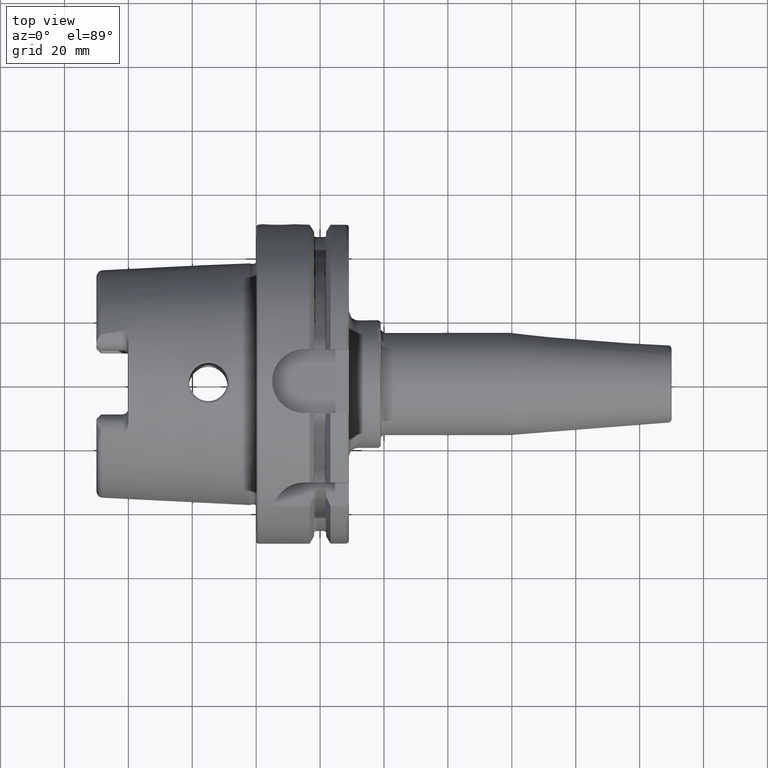
[diagram: clean part render]
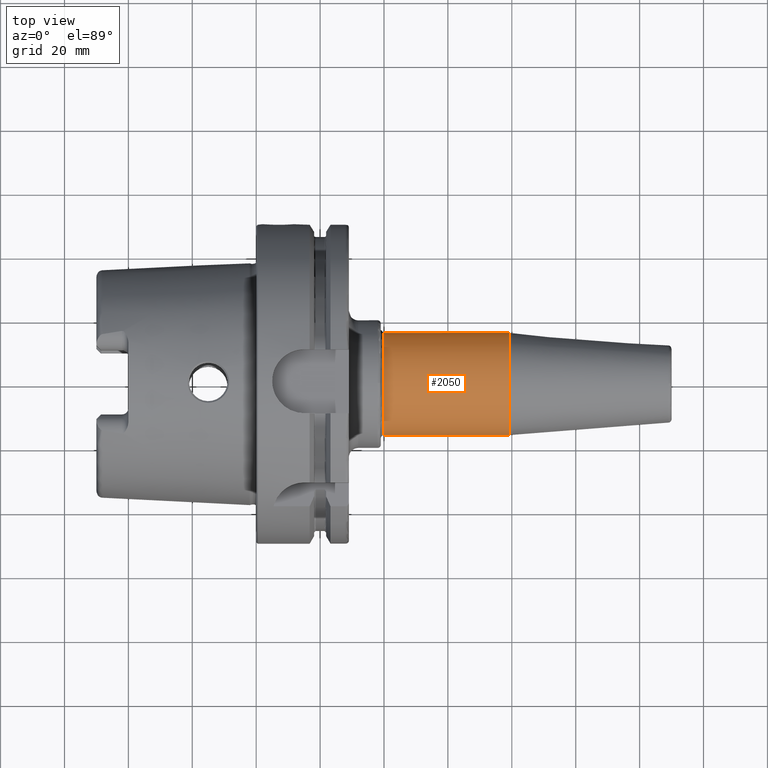
[diagram: same view with one face highlighted and labeled with its STEP entity id]
A machine part, top view. The second image highlights one B-rep face of the part: STEP entity #2050.
In plain terms, the highlighted cylindrical surface (bore or boss wall) has radius 16 mm, axis along (1, 0, 0).
Its self-contained STEP definition (entity closure, byte-faithful):
#178=CYLINDRICAL_SURFACE('',#2206,16.);
#220=FACE_OUTER_BOUND('',#345,.T.);
#345=EDGE_LOOP('',(#1394,#1395,#1396,#1397,#1398));
#480=LINE('',#3153,#588);
#588=VECTOR('',#2504,16.);
#696=CIRCLE('',#2202,16.);
#697=CIRCLE('',#2203,16.);
#699=CIRCLE('',#2207,16.);
#840=VERTEX_POINT('',#3142);
#841=VERTEX_POINT('',#3144);
#843=VERTEX_POINT('',#3151);
#1056=EDGE_CURVE('',#840,#841,#696,.T.);
#1057=EDGE_CURVE('',#841,#840,#697,.T.);
#1059=EDGE_CURVE('',#843,#843,#699,.T.);
#1060=EDGE_CURVE('',#843,#841,#480,.T.);
#1394=ORIENTED_EDGE('',*,*,#1059,.F.);
#1395=ORIENTED_EDGE('',*,*,#1060,.T.);
#1396=ORIENTED_EDGE('',*,*,#1056,.F.);
#1397=ORIENTED_EDGE('',*,*,#1057,.F.);
#1398=ORIENTED_EDGE('',*,*,#1060,.F.);
#2050=ADVANCED_FACE('',(#220),#178,.T.);
#2202=AXIS2_PLACEMENT_3D('',#3145,#2492,#2493);
#2203=AXIS2_PLACEMENT_3D('',#3146,#2494,#2495);
#2206=AXIS2_PLACEMENT_3D('',#3150,#2500,#2501);
#2207=AXIS2_PLACEMENT_3D('',#3152,#2502,#2503);
#2492=DIRECTION('center_axis',(-1.,0.,0.));
#2493=DIRECTION('ref_axis',(0.,-1.,1.83697019872103E-16));
#2494=DIRECTION('center_axis',(-1.,0.,0.));
#2495=DIRECTION('ref_axis',(0.,-1.,1.83697019872103E-16));
#2500=DIRECTION('center_axis',(1.,0.,0.));
#2501=DIRECTION('ref_axis',(0.,1.,0.));
#2502=DIRECTION('center_axis',(1.,0.,0.));
#2503=DIRECTION('ref_axis',(0.,0.,-1.));
#2504=DIRECTION('',(-1.,0.,0.));
#3142=CARTESIAN_POINT('',(40.,-1.95943487863576E-15,16.));
#3144=CARTESIAN_POINT('',(40.,-16.,-1.95943487863576E-15));
#3145=CARTESIAN_POINT('Origin',(40.,0.,0.));
#3146=CARTESIAN_POINT('Origin',(40.,0.,0.));
#3150=CARTESIAN_POINT('Origin',(59.0875905276507,0.,0.));
#3151=CARTESIAN_POINT('',(79.1751810553015,-16.,-1.95943487863576E-15));
#3152=CARTESIAN_POINT('Origin',(79.1751810553015,0.,0.));
#3153=CARTESIAN_POINT('',(59.0875905276507,-16.,-1.95943487863576E-15));